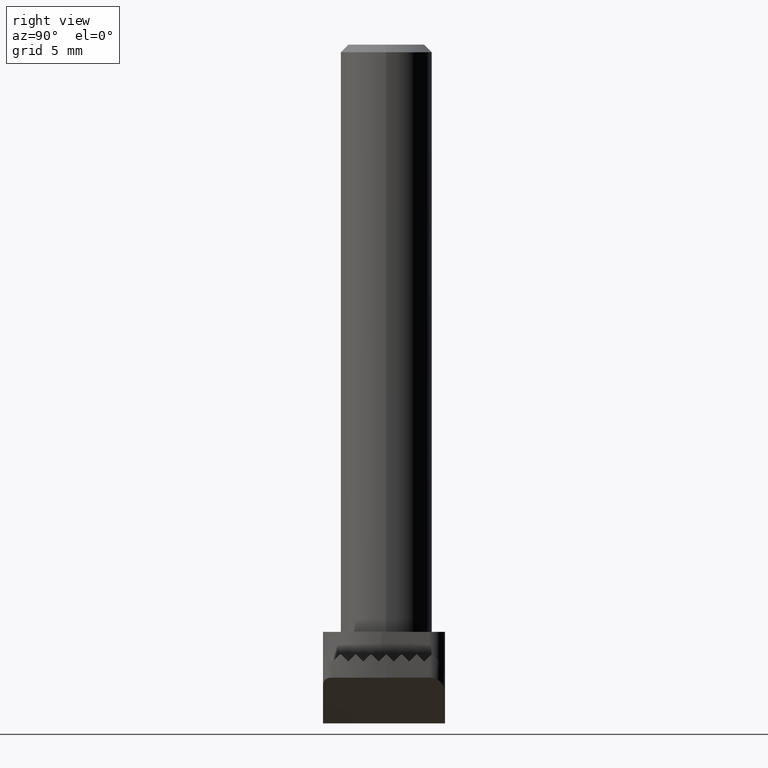
[diagram: clean part render]
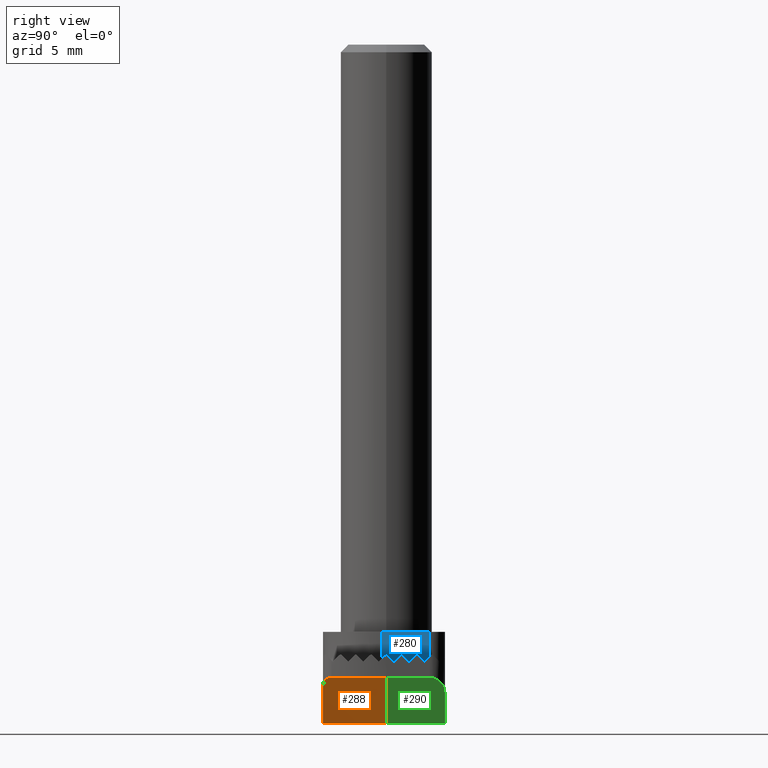
[diagram: same view with three faces highlighted in distinct colors, each labeled with its STEP entity id]
A machine part, right view with three faces highlighted in distinct colors.
Their STEP definitions:

[orange] entity #288 — the highlighted conical surface has half-angle 45 deg.
#288=ADVANCED_FACE('NONE',(#587),#588,.T.);
#587=FACE_OUTER_BOUND('',#893,.T.);
#588=CONICAL_SURFACE('',#894,8.0,0.785398163397443);
#893=EDGE_LOOP('',(#1737,#1738,#1739,#1740,#1741));
#894=AXIS2_PLACEMENT_3D('',#1742,#1743,#1744);
#1737=ORIENTED_EDGE('',*,*,#2208,.F.);
#1738=ORIENTED_EDGE('',*,*,#2254,.T.);
#1739=ORIENTED_EDGE('',*,*,#2237,.F.);
#1740=ORIENTED_EDGE('',*,*,#2240,.F.);
#1741=ORIENTED_EDGE('',*,*,#2255,.F.);
#1742=CARTESIAN_POINT('',(0.0,0.0,3.00000000000005));
#1743=DIRECTION('',(-0.0,-0.0,1.0));
#1744=DIRECTION('',(1.0,0.0,0.0));
#2208=EDGE_CURVE('NONE',#2753,#2755,#2756,.T.);
#2237=EDGE_CURVE('NONE',#2799,#2785,#2801,.T.);
#2240=EDGE_CURVE('NONE',#2803,#2799,#2805,.T.);
#2254=EDGE_CURVE('NONE',#2753,#2785,#2820,.T.);
#2255=EDGE_CURVE('NONE',#2755,#2803,#2821,.T.);
#2753=VERTEX_POINT('NONE',#4406);
#2755=VERTEX_POINT('NONE',#4409);
#2756=CIRCLE('',#4410,8.0);
#2785=VERTEX_POINT('NONE',#4457);
#2799=VERTEX_POINT('NONE',#4478);
#2801=B_SPLINE_CURVE_WITH_KNOTS('',3,(#4481,#4482,#4483,#4484,#4485,#4486),.UNSPECIFIED.,.F.,.F.,(4,2,4),(4.8073105531499E-019,0.00213613933522205,0.00427227867044411),.UNSPECIFIED.);
#2803=VERTEX_POINT('NONE',#4488);
#2805=CIRCLE('',#4491,4.99999999999998);
#2820=B_SPLINE_CURVE_WITH_KNOTS('',3,(#4527,#4528,#4529,#4530,#4531,#4532),.UNSPECIFIED.,.F.,.F.,(4,2,4),(0.0,0.000614447396814041,0.00122889479362808),.UNSPECIFIED.);
#2821=LINE('',#4533,#4534);
#4406=CARTESIAN_POINT('',(7.1442284397967,-3.6,3.00000000000005));
#4409=CARTESIAN_POINT('',(8.0,0.0,3.00000000000005));
#4410=AXIS2_PLACEMENT_3D('',#4849,#4850,#4851);
#4457=CARTESIAN_POINT('',(6.25119988481669,-4.15,2.50333259291716));
#4478=CARTESIAN_POINT('',(2.78881695347683,-4.15,0.0));
#4481=CARTESIAN_POINT('',(2.78881695347683,-4.15,0.0));
#4482=CARTESIAN_POINT('',(3.41585928998647,-4.15,0.349741259721166));
#4483=CARTESIAN_POINT('',(4.00310157325514,-4.15,0.753220430808821));
#4484=CARTESIAN_POINT('',(5.14746779176548,-4.15,1.6008444752881));
#4485=CARTESIAN_POINT('',(5.70323995609662,-4.15,2.04681450566982));
#4486=CARTESIAN_POINT('',(6.25119988481669,-4.15,2.50333259291716));
#4488=CARTESIAN_POINT('',(4.99999999999998,0.0,0.0));
#4491=AXIS2_PLACEMENT_3D('',#4877,#4878,#4879);
#4527=CARTESIAN_POINT('',(7.1442284397967,-3.6,3.00000000000005));
#4528=CARTESIAN_POINT('',(7.0505224453367,-3.78596028627793,3.00000000000005));
#4529=CARTESIAN_POINT('',(6.90027029982555,-3.93270592196528,2.94068212435926));
#4530=CARTESIAN_POINT('',(6.5788277596739,-4.11259074353141,2.75686172598425));
#4531=CARTESIAN_POINT('',(6.41027636899025,-4.15000000000084,2.63586289025264));
#4532=CARTESIAN_POINT('',(6.25119988481669,-4.15,2.50333259291716));
#4533=CARTESIAN_POINT('',(8.0,0.0,3.00000000000005));
#4534=VECTOR('',#4888,1000.0);
#4849=CARTESIAN_POINT('',(0.0,0.0,3.00000000000005));
#4850=DIRECTION('',(0.0,-0.0,1.0));
#4851=DIRECTION('',(1.0,0.0,0.0));
#4877=CARTESIAN_POINT('',(0.0,0.0,0.0));
#4878=DIRECTION('',(0.0,0.0,-1.0));
#4879=DIRECTION('',(1.0,0.0,0.0));
#4888=DIRECTION('',(-0.707106781186544,0.0,-0.707106781186551));

[blue] entity #280 — the highlighted planar face has unit normal (-1, 0, 0).
#280=ADVANCED_FACE('NONE',(#575),#576,.F.);
#575=FACE_OUTER_BOUND('',#881,.T.);
#576=PLANE('',#882);
#881=EDGE_LOOP('',(#1647,#1648,#1649,#1650,#1651,#1652,#1653,#1654,#1655,#1656,#1657,#1658,#1659,#1660,#1661,#1662));
#882=AXIS2_PLACEMENT_3D('',#1663,#1664,#1665);
#1647=ORIENTED_EDGE('',*,*,#2087,.T.);
#1648=ORIENTED_EDGE('',*,*,#2244,.T.);
#1649=ORIENTED_EDGE('',*,*,#2004,.F.);
#1650=ORIENTED_EDGE('',*,*,#2245,.T.);
#1651=ORIENTED_EDGE('',*,*,#2027,.T.);
#1652=ORIENTED_EDGE('',*,*,#2033,.T.);
#1653=ORIENTED_EDGE('',*,*,#1993,.T.);
#1654=ORIENTED_EDGE('',*,*,#2014,.T.);
#1655=ORIENTED_EDGE('',*,*,#2039,.T.);
#1656=ORIENTED_EDGE('',*,*,#2047,.T.);
#1657=ORIENTED_EDGE('',*,*,#1983,.T.);
#1658=ORIENTED_EDGE('',*,*,#2053,.T.);
#1659=ORIENTED_EDGE('',*,*,#2061,.T.);
#1660=ORIENTED_EDGE('',*,*,#2069,.T.);
#1661=ORIENTED_EDGE('',*,*,#1973,.T.);
#1662=ORIENTED_EDGE('',*,*,#2075,.T.);
#1663=CARTESIAN_POINT('',(4.0,3.85,6.0));
#1664=DIRECTION('',(-1.0,0.0,0.0));
#1665=DIRECTION('',(0.0,0.0,1.0));
#1973=EDGE_CURVE('NONE',#2404,#2408,#2410,.T.);
#1983=EDGE_CURVE('NONE',#2422,#2426,#2428,.T.);
#1993=EDGE_CURVE('NONE',#2440,#2444,#2446,.T.);
#2004=EDGE_CURVE('NONE',#2463,#2464,#2465,.T.);
#2014=EDGE_CURVE('NONE',#2444,#2481,#2482,.T.);
#2027=EDGE_CURVE('NONE',#2502,#2503,#2504,.T.);
#2033=EDGE_CURVE('NONE',#2503,#2440,#2513,.T.);
#2039=EDGE_CURVE('NONE',#2481,#2519,#2520,.T.);
#2047=EDGE_CURVE('NONE',#2519,#2422,#2531,.T.);
#2053=EDGE_CURVE('NONE',#2426,#2537,#2538,.T.);
#2061=EDGE_CURVE('NONE',#2537,#2549,#2550,.T.);
#2069=EDGE_CURVE('NONE',#2549,#2404,#2561,.T.);
#2075=EDGE_CURVE('NONE',#2408,#2567,#2568,.T.);
#2087=EDGE_CURVE('NONE',#2567,#2585,#2587,.T.);
#2244=EDGE_CURVE('NONE',#2585,#2464,#2810,.T.);
#2245=EDGE_CURVE('NONE',#2463,#2502,#2811,.T.);
#2404=VERTEX_POINT('',#3212);
#2408=VERTEX_POINT('NONE',#3217);
#2410=CIRCLE('',#3220,0.0999999999999994);
#2422=VERTEX_POINT('',#3267);
#2426=VERTEX_POINT('NONE',#3272);
#2428=CIRCLE('',#3275,0.0999999999999994);
#2440=VERTEX_POINT('',#3310);
#2444=VERTEX_POINT('NONE',#3315);
#2446=CIRCLE('',#3318,0.0999999999999994);
#2463=VERTEX_POINT('NONE',#3339);
#2464=VERTEX_POINT('NONE',#3340);
#2465=LINE('',#3341,#3342);
#2481=VERTEX_POINT('NONE',#3361);
#2482=LINE('',#3362,#3363);
#2502=VERTEX_POINT('NONE',#3410);
#2503=VERTEX_POINT('NONE',#3411);
#2504=LINE('',#3412,#3413);
#2513=CIRCLE('',#3444,0.0999999999999994);
#2519=VERTEX_POINT('NONE',#3459);
#2520=LINE('',#3460,#3461);
#2531=CIRCLE('',#3495,0.0999999999999994);
#2537=VERTEX_POINT('NONE',#3534);
#2538=LINE('',#3535,#3536);
#2549=VERTEX_POINT('NONE',#3570);
#2550=LINE('',#3571,#3572);
#2561=CIRCLE('',#3606,0.0999999999999994);
#2567=VERTEX_POINT('NONE',#3642);
#2568=LINE('',#3643,#3644);
#2585=VERTEX_POINT('NONE',#3696);
#2587=LINE('',#3708,#3709);
#2810=LINE('',#4497,#4498);
#2811=LINE('',#4499,#4500);
#3212=CARTESIAN_POINT('',(4.0,2.0,4.5));
#3217=CARTESIAN_POINT('',(4.0,2.07071067811865,4.47071067811865));
#3220=AXIS2_PLACEMENT_3D('',#4691,#4692,#4693);
#3267=CARTESIAN_POINT('',(4.0,0.999999999999999,4.5));
#3272=CARTESIAN_POINT('',(4.0,1.07071067811865,4.47071067811865));
#3275=AXIS2_PLACEMENT_3D('',#4701,#4702,#4703);
#3310=CARTESIAN_POINT('',(4.0,-6.62723038830916E-016,4.5));
#3315=CARTESIAN_POINT('',(4.0,0.0707106781186537,4.47071067811865));
#3318=AXIS2_PLACEMENT_3D('',#4711,#4712,#4713);
#3339=CARTESIAN_POINT('',(4.0,-0.299999999999999,6.0));
#3340=CARTESIAN_POINT('',(4.0,2.85,6.0));
#3341=CARTESIAN_POINT('',(4.0,3.85,6.0));
#3342=VECTOR('',#4727,1000.0);
#3361=CARTESIAN_POINT('',(4.0,0.5,4.04142135623731));
#3362=CARTESIAN_POINT('',(4.0,0.0707106781186542,4.47071067811865));
#3363=VECTOR('',#4746,1000.0);
#3410=CARTESIAN_POINT('',(4.0,-0.299999999999999,4.24142135623731));
#3411=CARTESIAN_POINT('',(4.0,-0.0707106781186542,4.47071067811865));
#3412=CARTESIAN_POINT('',(4.0,-0.0707106781186542,4.47071067811865));
#3413=VECTOR('',#4754,1000.0);
#3444=AXIS2_PLACEMENT_3D('',#4757,#4758,#4759);
#3459=CARTESIAN_POINT('',(4.0,0.929289321881346,4.47071067811865));
#3460=CARTESIAN_POINT('',(4.0,0.929289321881346,4.47071067811865));
#3461=VECTOR('',#4766,1000.0);
#3495=AXIS2_PLACEMENT_3D('',#4770,#4771,#4772);
#3534=CARTESIAN_POINT('',(4.0,1.5,4.04142135623731));
#3535=CARTESIAN_POINT('',(4.0,1.07071067811865,4.47071067811865));
#3536=VECTOR('',#4776,1000.0);
#3570=CARTESIAN_POINT('',(4.0,1.92928932188135,4.47071067811865));
#3571=CARTESIAN_POINT('',(4.0,1.92928932188135,4.47071067811865));
#3572=VECTOR('',#4780,1000.0);
#3606=AXIS2_PLACEMENT_3D('',#4784,#4785,#4786);
#3642=CARTESIAN_POINT('',(4.0,2.5,4.04142135623731));
#3643=CARTESIAN_POINT('',(4.0,2.07071067811865,4.47071067811865));
#3644=VECTOR('',#4790,1000.0);
#3696=CARTESIAN_POINT('',(4.0,2.85,4.39142135623731));
#3708=CARTESIAN_POINT('',(4.0,2.92928932188135,4.47071067811865));
#3709=VECTOR('',#4796,1000.0);
#4497=CARTESIAN_POINT('',(4.0,2.85,6.0));
#4498=VECTOR('',#4884,1000.0);
#4499=CARTESIAN_POINT('',(4.0,-0.299999999999999,6.0));
#4500=VECTOR('',#4885,1000.0);
#4691=CARTESIAN_POINT('',(4.0,2.0,4.4));
#4692=DIRECTION('',(-1.0,0.0,0.0));
#4693=DIRECTION('',(0.0,0.0,1.0));
#4701=CARTESIAN_POINT('',(4.0,0.999999999999999,4.4));
#4702=DIRECTION('',(-1.0,0.0,0.0));
#4703=DIRECTION('',(0.0,0.0,1.0));
#4711=CARTESIAN_POINT('',(4.0,-6.50521303491303E-016,4.4));
#4712=DIRECTION('',(-1.0,0.0,0.0));
#4713=DIRECTION('',(0.0,0.0,1.0));
#4727=DIRECTION('',(-0.0,1.0,-0.0));
#4746=DIRECTION('',(0.0,0.707106781186552,-0.707106781186543));
#4754=DIRECTION('',(0.0,0.707106781186551,0.707106781186544));
#4757=CARTESIAN_POINT('',(4.0,-6.50521303491303E-016,4.4));
#4758=DIRECTION('',(-1.0,0.0,0.0));
#4759=DIRECTION('',(0.0,0.0,1.0));
#4766=DIRECTION('',(0.0,0.707106781186551,0.707106781186544));
#4770=CARTESIAN_POINT('',(4.0,0.999999999999999,4.4));
#4771=DIRECTION('',(-1.0,0.0,0.0));
#4772=DIRECTION('',(0.0,0.0,1.0));
#4776=DIRECTION('',(0.0,0.707106781186552,-0.707106781186543));
#4780=DIRECTION('',(0.0,0.707106781186551,0.707106781186544));
#4784=CARTESIAN_POINT('',(4.0,2.0,4.4));
#4785=DIRECTION('',(-1.0,0.0,0.0));
#4786=DIRECTION('',(0.0,0.0,1.0));
#4790=DIRECTION('',(0.0,0.707106781186552,-0.707106781186543));
#4796=DIRECTION('',(0.0,0.707106781186551,0.707106781186544));
#4884=DIRECTION('',(-0.0,-0.0,1.0));
#4885=DIRECTION('',(-0.0,-0.0,-1.0));

[green] entity #290 — the highlighted planar face has unit normal (-0.7071, 0, 0.7071).
#290=ADVANCED_FACE('NONE',(#590),#591,.F.);
#590=FACE_OUTER_BOUND('',#896,.T.);
#591=PLANE('',#897);
#896=EDGE_LOOP('',(#1746,#1747,#1748,#1749,#1750));
#897=AXIS2_PLACEMENT_3D('',#1751,#1752,#1753);
#1746=ORIENTED_EDGE('',*,*,#2216,.F.);
#1747=ORIENTED_EDGE('',*,*,#2257,.T.);
#1748=ORIENTED_EDGE('',*,*,#2211,.F.);
#1749=ORIENTED_EDGE('',*,*,#2255,.T.);
#1750=ORIENTED_EDGE('',*,*,#2239,.F.);
#1751=CARTESIAN_POINT('',(8.0,0.0,3.00000000000005));
#1752=DIRECTION('',(-0.707106781186551,0.0,0.707106781186544));
#1753=DIRECTION('',(0.0,1.0,0.0));
#2211=EDGE_CURVE('NONE',#2755,#2759,#2760,.T.);
#2216=EDGE_CURVE('NONE',#2764,#2766,#2767,.T.);
#2239=EDGE_CURVE('NONE',#2766,#2803,#2804,.T.);
#2255=EDGE_CURVE('NONE',#2755,#2803,#2821,.T.);
#2257=EDGE_CURVE('NONE',#2764,#2759,#2823,.T.);
#2755=VERTEX_POINT('NONE',#4409);
#2759=VERTEX_POINT('NONE',#4414);
#2760=LINE('',#4415,#4416);
#2764=VERTEX_POINT('NONE',#4422);
#2766=VERTEX_POINT('NONE',#4425);
#2767=LINE('',#4426,#4427);
#2803=VERTEX_POINT('NONE',#4488);
#2804=LINE('',#4489,#4490);
#2821=LINE('',#4533,#4534);
#2823=(B_SPLINE_CURVE(3,(#4537,#4538,#4539,#4540),.UNSPECIFIED.,.F.,.F.)B_SPLINE_CURVE_WITH_KNOTS((4,4),(1.5707963267949,3.14159265358979),.UNSPECIFIED.)RATIONAL_B_SPLINE_CURVE((1.0,0.804737854124365,0.804737854124365,1.0))BOUNDED_CURVE()REPRESENTATION_ITEM('')GEOMETRIC_REPRESENTATION_ITEM()CURVE());
#4409=CARTESIAN_POINT('',(8.0,0.0,3.00000000000005));
#4414=CARTESIAN_POINT('',(8.0,2.85,3.00000000000005));
#4415=CARTESIAN_POINT('',(8.0,0.0,3.00000000000005));
#4416=VECTOR('',#4853,1000.0);
#4422=CARTESIAN_POINT('',(7.0,3.85,2.00000000000004));
#4425=CARTESIAN_POINT('',(4.99999999999997,3.85,0.0));
#4426=CARTESIAN_POINT('',(8.0,3.85,3.00000000000005));
#4427=VECTOR('',#4857,1000.0);
#4488=CARTESIAN_POINT('',(4.99999999999998,0.0,0.0));
#4489=CARTESIAN_POINT('',(4.99999999999998,0.0,0.0));
#4490=VECTOR('',#4876,1000.0);
#4533=CARTESIAN_POINT('',(8.0,0.0,3.00000000000005));
#4534=VECTOR('',#4888,1000.0);
#4537=CARTESIAN_POINT('',(7.0,3.85,2.00000000000004));
#4538=CARTESIAN_POINT('',(7.58578643762691,3.85,2.58578643762695));
#4539=CARTESIAN_POINT('',(8.0,3.4357864376269,3.00000000000005));
#4540=CARTESIAN_POINT('',(8.0,2.85,3.00000000000005));
#4853=DIRECTION('',(0.0,1.0,0.0));
#4857=DIRECTION('',(-0.707106781186544,-0.0,-0.707106781186551));
#4876=DIRECTION('',(0.0,-1.0,0.0));
#4888=DIRECTION('',(-0.707106781186544,0.0,-0.707106781186551));